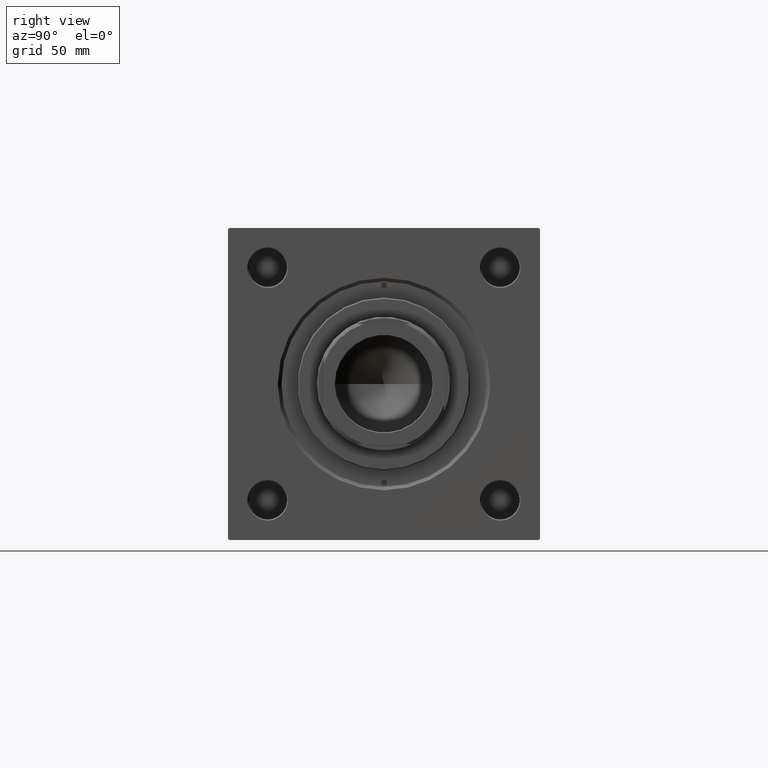
[diagram: clean part render]
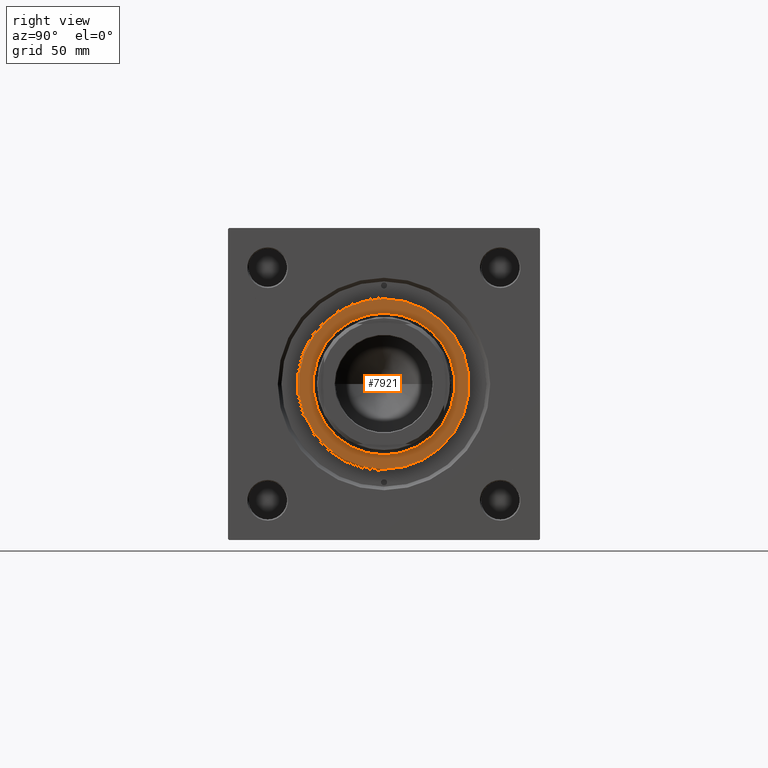
[diagram: same view with one face highlighted and labeled with its STEP entity id]
A machine part, right view. The second image highlights one B-rep face of the part: STEP entity #7921.
In plain terms, the highlighted planar face has unit normal (1, 0, 0).
Its self-contained STEP definition (entity closure, byte-faithful):
#450 = DIRECTION ( 'NONE',  ( 1.000000000000000000, 0.000000000000000000, 0.000000000000000000 ) ) ;
#815 = CIRCLE ( 'NONE', #29572, 35.49999999999999289 ) ;
#1146 = EDGE_CURVE ( 'NONE', #21607, #22995, #37237, .T. ) ;
#2884 = CARTESIAN_POINT ( 'NONE',  ( 35.49999999999999289, 4.378112306951787069E-15, 38.69999999999999574 ) ) ;
#3333 = ORIENTED_EDGE ( 'NONE', *, *, #41984, .T. ) ;
#6145 = DIRECTION ( 'NONE',  ( 1.000000000000000000, 0.000000000000000000, 0.000000000000000000 ) ) ;
#7921 = ADVANCED_FACE ( 'NONE', ( #18175, #26407 ), #14329, .T. ) ;
#9001 = DIRECTION ( 'NONE',  ( 0.000000000000000000, 0.000000000000000000, 1.000000000000000000 ) ) ;
#9972 = DIRECTION ( 'NONE',  ( 1.000000000000000000, 0.000000000000000000, -0.000000000000000000 ) ) ;
#11163 = DIRECTION ( 'NONE',  ( 1.000000000000000000, 0.000000000000000000, 0.000000000000000000 ) ) ;
#13512 = AXIS2_PLACEMENT_3D ( 'NONE', #46774, #30090, #30842 ) ;
#14329 = PLANE ( 'NONE',  #42358 ) ;
#15663 = CARTESIAN_POINT ( 'NONE',  ( 29.50000000000000355, 0.000000000000000000, 38.69999999999999574 ) ) ;
#18175 = FACE_BOUND ( 'NONE', #30992, .T. ) ;
#18426 = CARTESIAN_POINT ( 'NONE',  ( 0.000000000000000000, 0.000000000000000000, 38.69999999999999574 ) ) ;
#18926 = ORIENTED_EDGE ( 'NONE', *, *, #1146, .F. ) ;
#20293 = CIRCLE ( 'NONE', #44148, 35.49999999999999289 ) ;
#21172 = AXIS2_PLACEMENT_3D ( 'NONE', #25683, #9001, #6145 ) ;
#21607 = VERTEX_POINT ( 'NONE', #15663 ) ;
#22995 = VERTEX_POINT ( 'NONE', #49560 ) ;
#25683 = CARTESIAN_POINT ( 'NONE',  ( 0.000000000000000000, 0.000000000000000000, 38.69999999999999574 ) ) ;
#26407 = FACE_OUTER_BOUND ( 'NONE', #47282, .T. ) ;
#26566 = CARTESIAN_POINT ( 'NONE',  ( -35.49999999999999289, 0.000000000000000000, 38.69999999999999574 ) ) ;
#29290 = ORIENTED_EDGE ( 'NONE', *, *, #32641, .T. ) ;
#29572 = AXIS2_PLACEMENT_3D ( 'NONE', #30702, #30461, #11163 ) ;
#30090 = DIRECTION ( 'NONE',  ( 0.000000000000000000, 0.000000000000000000, 1.000000000000000000 ) ) ;
#30249 = CIRCLE ( 'NONE', #21172, 29.50000000000000355 ) ;
#30461 = DIRECTION ( 'NONE',  ( 0.000000000000000000, 0.000000000000000000, 1.000000000000000000 ) ) ;
#30702 = CARTESIAN_POINT ( 'NONE',  ( 0.000000000000000000, 0.000000000000000000, 38.69999999999999574 ) ) ;
#30842 = DIRECTION ( 'NONE',  ( 1.000000000000000000, 0.000000000000000000, 0.000000000000000000 ) ) ;
#30992 = EDGE_LOOP ( 'NONE', ( #18926, #37235 ) ) ;
#32641 = EDGE_CURVE ( 'NONE', #44749, #48265, #20293, .T. ) ;
#33388 = EDGE_CURVE ( 'NONE', #22995, #21607, #30249, .T. ) ;
#37235 = ORIENTED_EDGE ( 'NONE', *, *, #33388, .F. ) ;
#37237 = CIRCLE ( 'NONE', #13512, 29.50000000000000355 ) ;
#41984 = EDGE_CURVE ( 'NONE', #48265, #44749, #815, .T. ) ;
#42358 = AXIS2_PLACEMENT_3D ( 'NONE', #18426, #45182, #9972 ) ;
#44148 = AXIS2_PLACEMENT_3D ( 'NONE', #47508, #46743, #450 ) ;
#44749 = VERTEX_POINT ( 'NONE', #26566 ) ;
#45182 = DIRECTION ( 'NONE',  ( 0.000000000000000000, 0.000000000000000000, 1.000000000000000000 ) ) ;
#46743 = DIRECTION ( 'NONE',  ( 0.000000000000000000, 0.000000000000000000, 1.000000000000000000 ) ) ;
#46774 = CARTESIAN_POINT ( 'NONE',  ( 0.000000000000000000, 0.000000000000000000, 38.69999999999999574 ) ) ;
#47282 = EDGE_LOOP ( 'NONE', ( #29290, #3333 ) ) ;
#47508 = CARTESIAN_POINT ( 'NONE',  ( 0.000000000000000000, 0.000000000000000000, 38.69999999999999574 ) ) ;
#48265 = VERTEX_POINT ( 'NONE', #2884 ) ;
#49560 = CARTESIAN_POINT ( 'NONE',  ( -29.50000000000000355, 3.612708057484692393E-15, 38.69999999999999574 ) ) ;